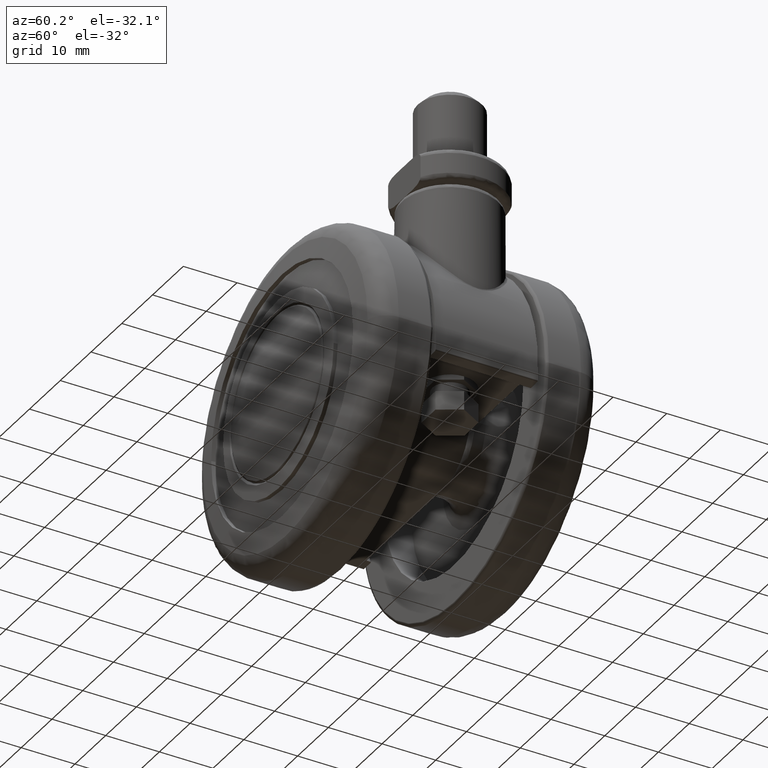
[diagram: clean part render]
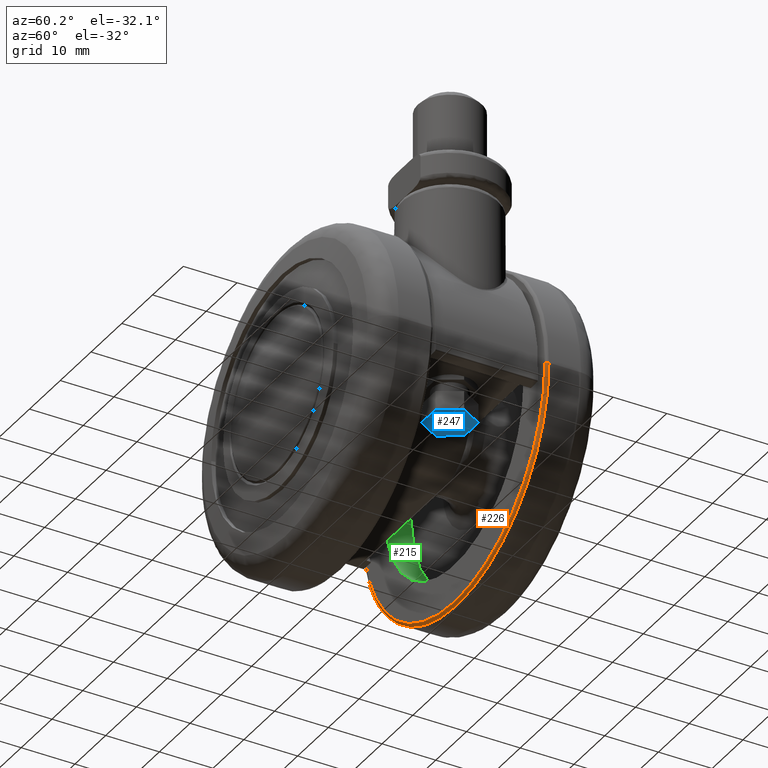
[diagram: same view with three faces highlighted in distinct colors, each labeled with its STEP entity id]
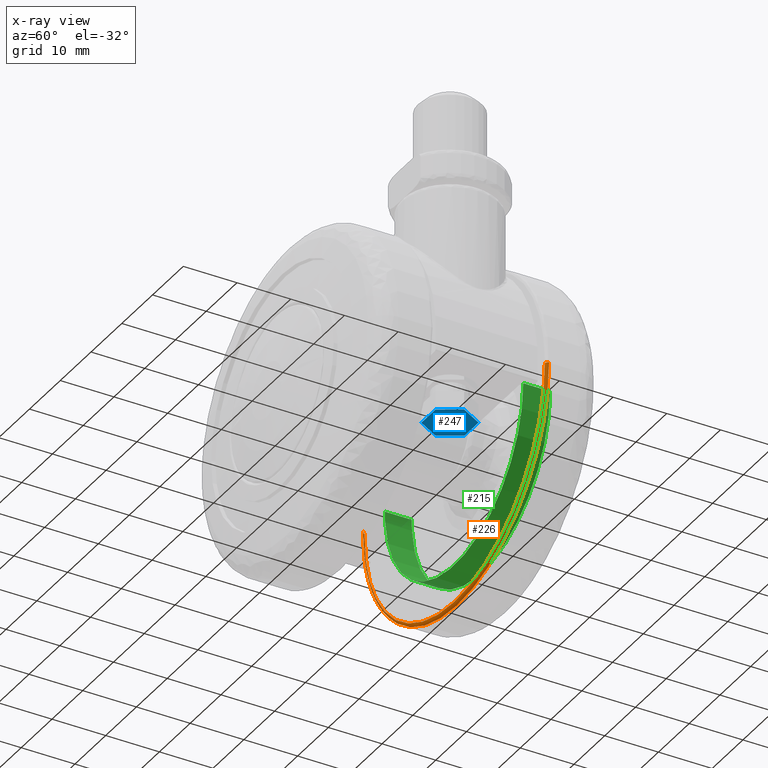
[diagram: x-ray of the same camera — body ghosted, the three highlighted faces saturated]
A machine part, auxiliary view with three faces highlighted in distinct colors.
The next image is the same camera in x-ray (body ghosted, the three faces saturated) — at least one of them is partly hidden behind the body in this view.
Their STEP definitions:

[orange] entity #226 — the highlighted face is a freeform B-spline surface patch.
#226=ADVANCED_FACE('',(#734),#733,.T.);
#733=( BOUNDED_SURFACE() B_SPLINE_SURFACE( 2,2,((#3489,#3490,#3491,#3492,#3493),(#3494,#3495,#3496,#3497,#3498),(#3499,#3500,#3501,#3502,#3503),(#3504,#3505,#3506,#3507,#3508),(#3509,#3510,#3511,#3512,#3513)), .UNSPECIFIED.,.F.,.F.,.F.) B_SPLINE_SURFACE_WITH_KNOTS((3,2,3),(3,2,3),(0.00000000000E+00,5.00000000000E-01,1.00000000000E+00),(0.00000000000E+00,5.00000000000E-01,1.00000000000E+00), .UNSPECIFIED. ) GEOMETRIC_REPRESENTATION_ITEM() RATIONAL_B_SPLINE_SURFACE(((1.00000000000E+00,7.07106781187E-01,1.00000000000E+00,7.07106781187E-01,1.00000000000E+00),(7.07106781187E-01,5.00000000000E-01,7.07106781187E-01,5.00000000000E-01,7.07106781187E-01),(1.00000000000E+00,7.07106781187E-01,1.00000000000E+00,7.07106781187E-01,1.00000000000E+00),(7.07106781187E-01,5.00000000000E-01,7.07106781187E-01,5.00000000000E-01,7.07106781187E-01),(1.00000000000E+00,7.07106781187E-01,1.00000000000E+00,7.07106781187E-01,1.00000000000E+00))) REPRESENTATION_ITEM('') SURFACE() );
#734=FACE_OUTER_BOUND('',#3514,.T.);
#3489=CARTESIAN_POINT('',(2.90000000000E+01,-1.17291442430E-19,2.50000000000E+00));
#3490=CARTESIAN_POINT('',(2.90000000000E+01,-1.17291442430E-19,2.00000000000E+00));
#3491=CARTESIAN_POINT('',(2.95000000000E+01,-1.19313708679E-19,2.00000000000E+00));
#3492=CARTESIAN_POINT('',(3.00000000000E+01,-1.21335974928E-19,2.00000000000E+00));
#3493=CARTESIAN_POINT('',(3.00000000000E+01,-1.21335974928E-19,2.50000000000E+00));
#3494=CARTESIAN_POINT('',(2.90000000000E+01,2.90000000000E+01,2.50000000000E+00));
#3495=CARTESIAN_POINT('',(2.90000000000E+01,2.90000000000E+01,2.00000000000E+00));
#3496=CARTESIAN_POINT('',(2.95000000000E+01,2.95000000000E+01,2.00000000000E+00));
#3497=CARTESIAN_POINT('',(3.00000000000E+01,3.00000000000E+01,2.00000000000E+00));
#3498=CARTESIAN_POINT('',(3.00000000000E+01,3.00000000000E+01,2.50000000000E+00));
#3499=CARTESIAN_POINT('',(1.77585515021E-15,2.90000000000E+01,2.50000000000E+00));
#3500=CARTESIAN_POINT('',(1.77585515021E-15,2.90000000000E+01,2.00000000000E+00));
#3501=CARTESIAN_POINT('',(1.80647334245E-15,2.95000000000E+01,2.00000000000E+00));
#3502=CARTESIAN_POINT('',(1.83709153470E-15,3.00000000000E+01,2.00000000000E+00));
#3503=CARTESIAN_POINT('',(1.83709153470E-15,3.00000000000E+01,2.50000000000E+00));
#3504=CARTESIAN_POINT('',(-2.90000000000E+01,2.90000000000E+01,2.50000000000E+00));
#3505=CARTESIAN_POINT('',(-2.90000000000E+01,2.90000000000E+01,2.00000000000E+00));
#3506=CARTESIAN_POINT('',(-2.95000000000E+01,2.95000000000E+01,2.00000000000E+00));
#3507=CARTESIAN_POINT('',(-3.00000000000E+01,3.00000000000E+01,2.00000000000E+00));
#3508=CARTESIAN_POINT('',(-3.00000000000E+01,3.00000000000E+01,2.50000000000E+00));
#3509=CARTESIAN_POINT('',(-2.90000000000E+01,3.55159300897E-15,2.50000000000E+00));
#3510=CARTESIAN_POINT('',(-2.90000000000E+01,3.55159300897E-15,2.00000000000E+00));
#3511=CARTESIAN_POINT('',(-2.95000000000E+01,3.61282737119E-15,2.00000000000E+00));
#3512=CARTESIAN_POINT('',(-3.00000000000E+01,3.67406173342E-15,2.00000000000E+00));
#3513=CARTESIAN_POINT('',(-3.00000000000E+01,3.67406173342E-15,2.50000000000E+00));
#3514=EDGE_LOOP('',(#5929,#5930,#5931,#5932));
#5929=ORIENTED_EDGE('',*,*,#6954,.F.);
#5930=ORIENTED_EDGE('',*,*,#7015,.T.);
#5931=ORIENTED_EDGE('',*,*,#7017,.F.);
#5932=ORIENTED_EDGE('',*,*,#7016,.F.);
#6954=EDGE_CURVE('',#7626,#7625,#7633,.T.);
#7015=EDGE_CURVE('',#7626,#8031,#8039,.T.);
#7016=EDGE_CURVE('',#7625,#8032,#8045,.T.);
#7017=EDGE_CURVE('',#8032,#8031,#8051,.T.);
#7625=VERTEX_POINT('',#11408);
#7626=VERTEX_POINT('',#11409);
#7633=CIRCLE('',#11417,2.95000000000E+01);
#8031=VERTEX_POINT('',#11674);
#8032=VERTEX_POINT('',#11675);
#8039=(BOUNDED_CURVE() B_SPLINE_CURVE(2,(#11680,#11681,#11682),.UNSPECIFIED.,.F.,.F.) B_SPLINE_CURVE_WITH_KNOTS((3,3),(5.00000000000E-01,1.00000000000E+00),.UNSPECIFIED.) CURVE() GEOMETRIC_REPRESENTATION_ITEM() RATIONAL_B_SPLINE_CURVE((1.00000000000E+00,7.07106781187E-01,1.00000000000E+00)) REPRESENTATION_ITEM('') );
#8045=(BOUNDED_CURVE() B_SPLINE_CURVE(3,(#11683,#11684,#11685,#11686),.UNSPECIFIED.,.F.,.F.) B_SPLINE_CURVE_WITH_KNOTS((4,4),(4.99998681775E-01,1.00000000000E+00),.UNSPECIFIED.) CURVE() GEOMETRIC_REPRESENTATION_ITEM() RATIONAL_B_SPLINE_CURVE((1.00000000000E+00,1.00000000000E+00,1.00000000000E+00,1.00000000000E+00)) REPRESENTATION_ITEM('') );
#8051=CIRCLE('',#11690,3.00000000000E+01);
#11408=CARTESIAN_POINT('',(2.95000000000E+01,-3.07354836874E-17,2.00000000000E+00));
#11409=CARTESIAN_POINT('',(-2.95000000000E+01,-8.28966525053E-15,2.00000000000E+00));
#11414=CARTESIAN_POINT('',(0.00000000000E+00,0.00000000000E+00,2.00000000000E+00));
#11415=DIRECTION('',(0.00000000000E+00,0.00000000000E+00,-1.00000000000E+00));
#11416=DIRECTION('',(1.00000000000E+00,-1.23502516185E-16,-0.00000000000E+00));
#11417=AXIS2_PLACEMENT_3D('',#11414,#11415,#11416);
#11674=CARTESIAN_POINT('',(-3.00000000000E+01,2.36847578587E-15,2.50000000000E+00));
#11675=CARTESIAN_POINT('',(3.00000000000E+01,0.00000000000E+00,2.50000000000E+00));
#11680=CARTESIAN_POINT('',(-2.95000000000E+01,-3.61258874378E-15,2.00000000000E+00));
#11681=CARTESIAN_POINT('',(-3.00000000000E+01,-3.67381906147E-15,2.00000000000E+00));
#11682=CARTESIAN_POINT('',(-3.00000000000E+01,-3.67381906147E-15,2.50000000000E+00));
#11683=CARTESIAN_POINT('',(2.94999981357E+01,4.73694639872E-15,2.00000000000E+00));
#11684=CARTESIAN_POINT('',(2.98047369532E+01,3.97070011560E-15,2.02859457831E+00));
#11685=CARTESIAN_POINT('',(2.99714042413E+01,3.97070183994E-15,2.19526124498E+00));
#11686=CARTESIAN_POINT('',(3.00000000000E+01,4.73695157173E-15,2.50000000000E+00));
#11687=CARTESIAN_POINT('',(0.00000000000E+00,0.00000000000E+00,2.50000000000E+00));
#11688=DIRECTION('',(0.00000000000E+00,0.00000000000E+00,1.00000000000E+00));
#11689=DIRECTION('',(1.00000000000E+00,-1.22460635382E-16,0.00000000000E+00));
#11690=AXIS2_PLACEMENT_3D('',#11687,#11688,#11689);

[blue] entity #247 — the highlighted planar face has unit normal (0, 0, 1).
#247=ADVANCED_FACE('',(#946),#945,.F.);
#945=PLANE('',#3767);
#946=FACE_OUTER_BOUND('',#3768,.T.);
#3764=CARTESIAN_POINT('',(4.03000000000E+01,-5.54256258422E+00,-4.80000000000E+00));
#3765=DIRECTION('',(-1.00000000000E+00,0.00000000000E+00,0.00000000000E+00));
#3766=DIRECTION('',(0.00000000000E+00,0.00000000000E+00,1.00000000000E+00));
#3767=AXIS2_PLACEMENT_3D('',#3764,#3765,#3766);
#3768=EDGE_LOOP('',(#6038,#6039,#6040,#6041,#6042,#6043));
#6038=ORIENTED_EDGE('',*,*,#7065,.F.);
#6039=ORIENTED_EDGE('',*,*,#7062,.F.);
#6040=ORIENTED_EDGE('',*,*,#7059,.F.);
#6041=ORIENTED_EDGE('',*,*,#7056,.F.);
#6042=ORIENTED_EDGE('',*,*,#7071,.F.);
#6043=ORIENTED_EDGE('',*,*,#7068,.F.);
#7056=EDGE_CURVE('',#8303,#8310,#8311,.T.);
#7059=EDGE_CURVE('',#8310,#8330,#8331,.T.);
#7062=EDGE_CURVE('',#8330,#8350,#8351,.T.);
#7065=EDGE_CURVE('',#8350,#8370,#8371,.T.);
#7068=EDGE_CURVE('',#8370,#8390,#8391,.T.);
#7071=EDGE_CURVE('',#8390,#8303,#8409,.T.);
#8303=VERTEX_POINT('',#11922);
#8310=VERTEX_POINT('',#11926);
#8311=LINE('',#11927,#11928);
#8330=VERTEX_POINT('',#11937);
#8331=LINE('',#11938,#11939);
#8350=VERTEX_POINT('',#11948);
#8351=LINE('',#11949,#11950);
#8370=VERTEX_POINT('',#11959);
#8371=LINE('',#11960,#11961);
#8390=VERTEX_POINT('',#11970);
#8391=LINE('',#11971,#11972);
#8409=LINE('',#11980,#11981);
#11922=CARTESIAN_POINT('',(4.03000000000E+01,2.30940107676E+00,4.00000000000E+00));
#11926=CARTESIAN_POINT('',(4.03000000000E+01,4.61880215352E+00,-1.58022466640E-14));
#11927=CARTESIAN_POINT('',(4.03000000000E+01,2.30940107676E+00,4.00000000000E+00));
#11928=VECTOR('',#11929,4.61880215352E+00);
#11929=DIRECTION('',(0.00000000000E+00,5.00000000000E-01,-8.66025403784E-01));
#11937=CARTESIAN_POINT('',(4.03000000000E+01,2.30940107676E+00,-4.00000000000E+00));
#11938=CARTESIAN_POINT('',(4.03000000000E+01,4.61880215352E+00,-1.58022466640E-14));
#11939=VECTOR('',#11940,4.61880215352E+00);
#11940=DIRECTION('',(0.00000000000E+00,-5.00000000000E-01,-8.66025403784E-01));
#11948=CARTESIAN_POINT('',(4.03000000000E+01,-2.30940107676E+00,-4.00000000000E+00));
#11949=CARTESIAN_POINT('',(4.03000000000E+01,2.30940107676E+00,-4.00000000000E+00));
#11950=VECTOR('',#11951,4.61880215352E+00);
#11951=DIRECTION('',(0.00000000000E+00,-1.00000000000E+00,3.55748096981E-15));
#11959=CARTESIAN_POINT('',(4.03000000000E+01,-4.61880215352E+00,1.66021763484E-14));
#11960=CARTESIAN_POINT('',(4.03000000000E+01,-2.30940107676E+00,-4.00000000000E+00));
#11961=VECTOR('',#11962,4.61880215352E+00);
#11962=DIRECTION('',(0.00000000000E+00,-5.00000000000E-01,8.66025403784E-01));
#11970=CARTESIAN_POINT('',(4.03000000000E+01,-2.30940107676E+00,4.00000000000E+00));
#11971=CARTESIAN_POINT('',(4.03000000000E+01,-4.61880215352E+00,1.66021763484E-14));
#11972=VECTOR('',#11973,4.61880215352E+00);
#11973=DIRECTION('',(0.00000000000E+00,5.00000000000E-01,8.66025403784E-01));
#11980=CARTESIAN_POINT('',(4.03000000000E+01,-2.30940107676E+00,4.00000000000E+00));
#11981=VECTOR('',#11982,4.61880215352E+00);
#11982=DIRECTION('',(0.00000000000E+00,1.00000000000E+00,-2.98059216389E-15));

[green] entity #215 — the highlighted cylindrical surface (partial cylindrical patch) has radius 22.5 mm, axis along (-0, -1, 0).
#215=ADVANCED_FACE('',(#624),#623,.F.);
#623=CYLINDRICAL_SURFACE('',#3404,2.25000000000E+01);
#624=FACE_OUTER_BOUND('',#3405,.T.);
#3401=CARTESIAN_POINT('',(0.00000000000E+00,0.00000000000E+00,4.50000000000E+00));
#3402=DIRECTION('',(-0.00000000000E+00,-0.00000000000E+00,-1.00000000000E+00));
#3403=DIRECTION('',(-1.00000000000E+00,-0.00000000000E+00,-0.00000000000E+00));
#3404=AXIS2_PLACEMENT_3D('',#3401,#3402,#3403);
#3405=EDGE_LOOP('',(#5875,#5876,#5877,#5878,#5879,#5880));
#5875=ORIENTED_EDGE('',*,*,#6962,.T.);
#5876=ORIENTED_EDGE('',*,*,#6964,.T.);
#5877=ORIENTED_EDGE('',*,*,#6997,.T.);
#5878=ORIENTED_EDGE('',*,*,#6955,.T.);
#5879=ORIENTED_EDGE('',*,*,#6957,.T.);
#5880=ORIENTED_EDGE('',*,*,#6998,.F.);
#6955=EDGE_CURVE('',#7639,#7640,#7641,.T.);
#6957=EDGE_CURVE('',#7640,#7647,#7654,.T.);
#6962=EDGE_CURVE('',#7688,#7689,#7690,.T.);
#6964=EDGE_CURVE('',#7689,#7696,#7703,.T.);
#6997=EDGE_CURVE('',#7696,#7639,#7925,.T.);
#6998=EDGE_CURVE('',#7688,#7647,#7931,.T.);
#7639=VERTEX_POINT('',#11418);
#7640=VERTEX_POINT('',#11419);
#7641=CIRCLE('',#11423,2.25000000000E+01);
#7647=VERTEX_POINT('',#11424);
#7654=CIRCLE('',#11432,2.25000000000E+01);
#7688=VERTEX_POINT('',#11453);
#7689=VERTEX_POINT('',#11454);
#7690=CIRCLE('',#11458,2.25000000000E+01);
#7696=VERTEX_POINT('',#11459);
#7703=CIRCLE('',#11467,2.25000000000E+01);
#7925=(BOUNDED_CURVE() B_SPLINE_CURVE(1,(#11622,#11623),.UNSPECIFIED.,.F.,.F.) B_SPLINE_CURVE_WITH_KNOTS((2,2),(8.33333313467E-02,9.16666664002E-01),.UNSPECIFIED.) CURVE() GEOMETRIC_REPRESENTATION_ITEM() RATIONAL_B_SPLINE_CURVE((1.00000000000E+00,1.00000000000E+00)) REPRESENTATION_ITEM('') );
#7931=(BOUNDED_CURVE() B_SPLINE_CURVE(1,(#11624,#11625),.UNSPECIFIED.,.F.,.F.) B_SPLINE_CURVE_WITH_KNOTS((2,2),(8.33333333333E-02,9.16666666667E-01),.UNSPECIFIED.) CURVE() GEOMETRIC_REPRESENTATION_ITEM() RATIONAL_B_SPLINE_CURVE((7.50000000000E-01,7.50000000000E-01)) REPRESENTATION_ITEM('') );
#11418=CARTESIAN_POINT('',(-2.25000000000E+01,-8.03386126938E-08,2.00000000000E+00));
#11419=CARTESIAN_POINT('',(-2.23970834024E+01,2.14957090231E+00,2.00000000000E+00));
#11420=CARTESIAN_POINT('',(0.00000000000E+00,0.00000000000E+00,2.00000000000E+00));
#11421=DIRECTION('',(0.00000000000E+00,0.00000000000E+00,-1.00000000000E+00));
#11422=DIRECTION('',(-9.95425928997E-01,9.55364845470E-02,0.00000000000E+00));
#11423=AXIS2_PLACEMENT_3D('',#11420,#11421,#11422);
#11424=CARTESIAN_POINT('',(2.24999999999E+01,-5.45503734179E-05,2.00000000000E+00));
#11429=CARTESIAN_POINT('',(0.00000000000E+00,0.00000000000E+00,2.00000000000E+00));
#11430=DIRECTION('',(0.00000000000E+00,0.00000000000E+00,-1.00000000000E+00));
#11431=DIRECTION('',(-9.95425928997E-01,9.55364845470E-02,0.00000000000E+00));
#11432=AXIS2_PLACEMENT_3D('',#11429,#11430,#11431);
#11453=CARTESIAN_POINT('',(2.24999999999E+01,-5.45502832697E-05,7.00000000000E+00));
#11454=CARTESIAN_POINT('',(-2.23970834024E+01,2.14957090231E+00,7.00000000000E+00));
#11455=CARTESIAN_POINT('',(0.00000000000E+00,0.00000000000E+00,7.00000000000E+00));
#11456=DIRECTION('',(0.00000000000E+00,0.00000000000E+00,1.00000000000E+00));
#11457=DIRECTION('',(-9.95425928997E-01,9.55364845470E-02,0.00000000000E+00));
#11458=AXIS2_PLACEMENT_3D('',#11455,#11456,#11457);
#11459=CARTESIAN_POINT('',(-2.25000000000E+01,-8.03386128400E-08,7.00000000000E+00));
#11464=CARTESIAN_POINT('',(0.00000000000E+00,0.00000000000E+00,7.00000000000E+00));
#11465=DIRECTION('',(0.00000000000E+00,0.00000000000E+00,1.00000000000E+00));
#11466=DIRECTION('',(-9.95425928997E-01,9.55364845470E-02,0.00000000000E+00));
#11467=AXIS2_PLACEMENT_3D('',#11464,#11465,#11466);
#11622=CARTESIAN_POINT('',(-2.25000000000E+01,0.00000000000E+00,7.00000001192E+00));
#11623=CARTESIAN_POINT('',(-2.25000000000E+01,0.00000000000E+00,2.00000001599E+00));
#11624=CARTESIAN_POINT('',(2.25000000000E+01,0.00000000000E+00,7.00000000000E+00));
#11625=CARTESIAN_POINT('',(2.25000000000E+01,0.00000000000E+00,2.00000000000E+00));